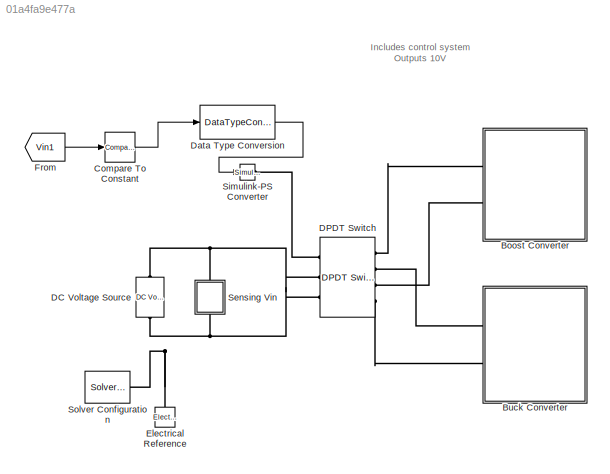
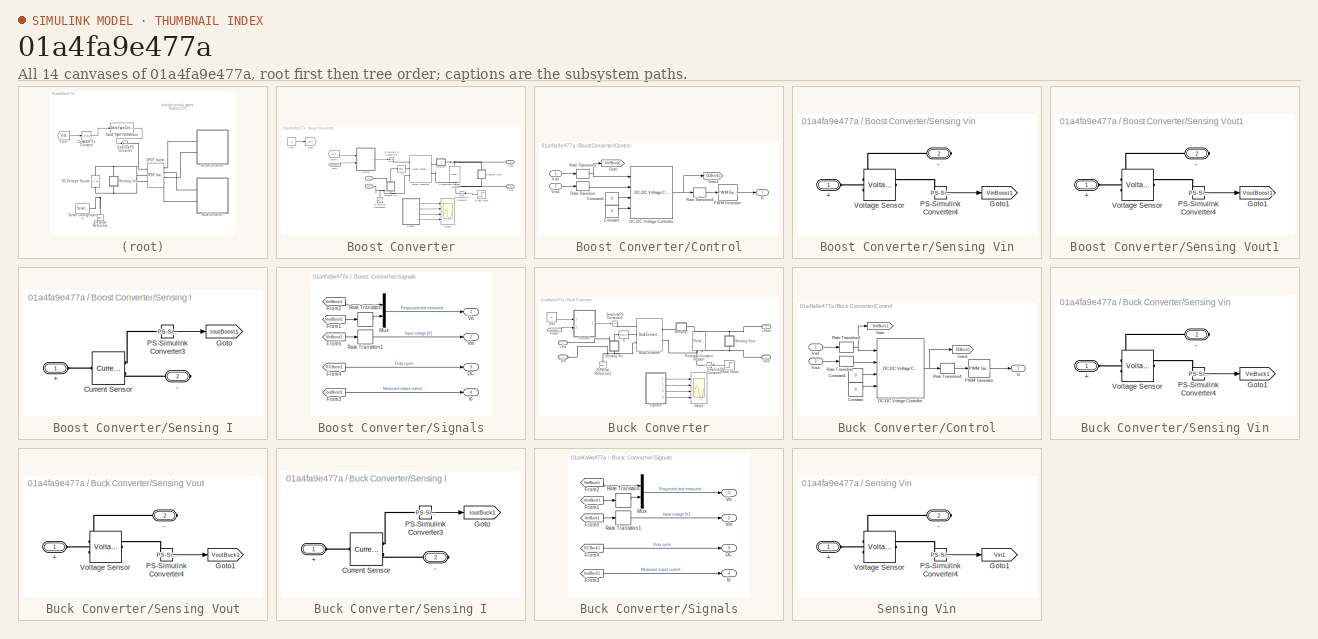
[diagram: thumbnail index - all 14 canvases of the model, root first then tree order]
MODEL slx_01a4fa9e477a
KIND model
CONFIG AbsTol = auto
CONFIG EnableMultiTasking = off
CONFIG FixedStep = auto
CONFIG MaxStep = auto
CONFIG MinStep = auto
CONFIG RelTol = 1e-3
CONFIG SampleTimeConstraint = Unconstrained
CONFIG SolverName = VariableStepAuto
CONFIG StartTime = 0.0
CONFIG StopTime = 0.04
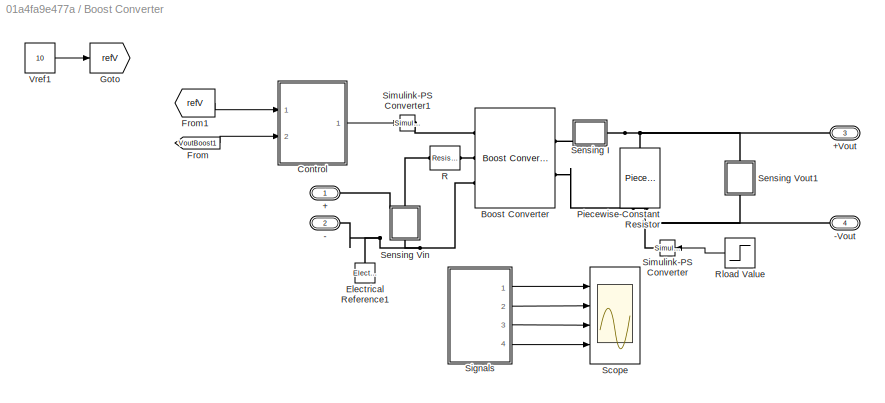
BLOCK [SubSystem] Boost Converter
  Ports = [0, 0, 0, 0, 0, 2, 2]
  RequestExecContextInheritance = off
BLOCK [PMIOPort] Boost Converter/+
  Side = Left
BLOCK [PMIOPort] Boost Converter/+Vout
  NameLocation = top
  Port = 3
  Side = Right
BLOCK [PMIOPort] Boost Converter/-
  Port = 2
  Side = Left
BLOCK [PMIOPort] Boost Converter/-Vout
  NameLocation = top
  Port = 4
  Side = Right
BLOCK [Reference] Boost Converter/Boost Converter  REF=ee_lib/Semiconductors &
Converters/Converters/Boost Converter
  Ports = [0, 0, 0, 0, 0, 3, 2]
  SourceBlock = ee_lib/Semiconductors &\nConverters/Converters/Boost Converter
  SourceProductBaseCode = PS
  SourceType = Boost Converter
BLOCK [SubSystem] Boost Converter/Control
  Ports = [2, 1]
  RequestExecContextInheritance = off
BLOCK [Constant] Boost Converter/Control/Constant
  Value = 0
BLOCK [Constant] Boost Converter/Control/Constant1
  Value = 0
BLOCK [Reference] Boost Converter/Control/DC-DC Voltage Controller  REF=eeDcDcVoltageController/DC-DC Voltage Controller
  Ports = [4, 1]
  SourceBlock = eeDcDcVoltageController/DC-DC Voltage Controller
  SourceProductBaseCode = PS
  SourceType = DC-DC Voltage Controller
BLOCK [Outport] Boost Converter/Control/G
  VectorParamsAs1DForOutWhenUnconnected = off
BLOCK [Goto] Boost Converter/Control/Goto
  GotoTag = VrefBoost1
  TagVisibility = global
BLOCK [Goto] Boost Converter/Control/Goto1
  GotoTag = DCBoost1
  TagVisibility = global
BLOCK [Reference] Boost Converter/Control/PWM Generator  REF=eePwmGenerator/PWM Generator
  Ports = [1, 1]
  SourceBlock = eePwmGenerator/PWM Generator
  SourceProductBaseCode = PS
  SourceType = PWM Generator
BLOCK [RateTransition] Boost Converter/Control/Rate Transition
  OutPortSampleTime = 1e-4
BLOCK [RateTransition] Boost Converter/Control/Rate Transition3
  OutPortSampleTime = 1e-4
BLOCK [RateTransition] Boost Converter/Control/Rate Transition4
  OutPortSampleTime = 5e-6
BLOCK [Inport] Boost Converter/Control/Vout
  Port = 2
BLOCK [Inport] Boost Converter/Control/Vref
BLOCK [Reference] Boost Converter/Electrical Reference1  REF=fl_lib/Electrical/Electrical Elements/Electrical Reference
  NameLocation = right
  Ports = [0, 0, 0, 0, 0, 1]
  SourceBlock = fl_lib/Electrical/Electrical Elements/Electrical Reference
  SourceProductBaseCode = PW,SS,VE
  SourceType = Electrical Reference
BLOCK [From] Boost Converter/From
  GotoTag = VoutBoost1
  TagVisibility = global
BLOCK [From] Boost Converter/From1
  GotoTag = refV
  TagVisibility = global
BLOCK [Goto] Boost Converter/Goto
  GotoTag = refV
  TagVisibility = global
BLOCK [Reference] Boost Converter/Piecewise-Constant Resistor  REF=ThreePhaseExamples_lib/Fundamental/Piecewise-Constant
Resistor
  NameLocation = right
  Ports = [0, 0, 0, 0, 0, 2, 1]
  SourceBlock = ThreePhaseExamples_lib/Fundamental/Piecewise-Constant\nResistor
  SourceProductBaseCode = PS
  SourceType = Piecewise-Constant\nResistor
BLOCK [Reference] Boost Converter/R  REF=fl_lib/Electrical/Electrical Elements/Resistor
  Ports = [0, 0, 0, 0, 0, 1, 1]
  SourceBlock = fl_lib/Electrical/Electrical Elements/Resistor
  SourceProductBaseCode = PW,SS,VE
  SourceType = Resistor
BLOCK [Step] Boost Converter/Rload Value
  After = 15
  Before = 10
  SampleTime = 0
  Time = 0.15
BLOCK [Scope] Boost Converter/Scope
  Floating = off
  NumInputPorts = 4
  Ports = [4]
  ScopeSpecificationString = Simulink.scopes.TimeScopeBlockCfg('CurrentConfiguration', extmgr.ConfigurationSet(extmgr.Configuration('Core','General UI',true),extmgr.Configuration('Core','Source UI',true),extmgr.Configuration('Sources','WiredSimulink',true),extmgr.Configuration('Visuals','Time Domain',true,'SerializedDisplays',{struct('MinYLimReal','-1.28158','MaxYLimReal','11.53424','YLabelReal','','MinYLimMag','0.00000','Max...<+3589ch>
BLOCK [SubSystem] Boost Converter/Sensing I
  Ports = [0, 0, 0, 0, 0, 1, 1]
  RequestExecContextInheritance = off
BLOCK [PMIOPort] Boost Converter/Sensing I/+
  Side = Left
BLOCK [PMIOPort] Boost Converter/Sensing I/-
  Port = 2
  Side = Right
BLOCK [Reference] Boost Converter/Sensing I/Current Sensor  REF=fl_lib/Electrical/Electrical Sensors/Current Sensor
  Ports = [0, 0, 0, 0, 0, 1, 2]
  SourceBlock = fl_lib/Electrical/Electrical Sensors/Current Sensor
  SourceProductBaseCode = PW,SS,VE
  SourceType = Current Sensor
BLOCK [Goto] Boost Converter/Sensing I/Goto
  GotoTag = IoutBoost1
  TagVisibility = global
BLOCK [Reference] Boost Converter/Sensing I/PS-Simulink Converter3  REF=nesl_utility/PS-Simulink
Converter
  Ports = [0, 1, 0, 0, 0, 1]
  SourceBlock = nesl_utility/PS-Simulink\nConverter
  SourceProductBaseCode = SS,PW,VE
  SourceType = PS-Simulink\nConverter
BLOCK [SubSystem] Boost Converter/Sensing Vin
  NameLocation = right
  Ports = [0, 0, 0, 0, 0, 1, 1]
  RequestExecContextInheritance = off
BLOCK [PMIOPort] Boost Converter/Sensing Vin/+
  Side = Left
BLOCK [PMIOPort] Boost Converter/Sensing Vin/-
  Port = 2
  Side = Right
BLOCK [Goto] Boost Converter/Sensing Vin/Goto1
  GotoTag = VinBoost1
  TagVisibility = global
BLOCK [Reference] Boost Converter/Sensing Vin/PS-Simulink Converter4  REF=nesl_utility/PS-Simulink
Converter
  Ports = [0, 1, 0, 0, 0, 1]
  SourceBlock = nesl_utility/PS-Simulink\nConverter
  SourceProductBaseCode = SS,PW,VE
  SourceType = PS-Simulink\nConverter
BLOCK [Reference] Boost Converter/Sensing Vin/Voltage Sensor  REF=fl_lib/Electrical/Electrical Sensors/Voltage Sensor
  Ports = [0, 0, 0, 0, 0, 1, 2]
  SourceBlock = fl_lib/Electrical/Electrical Sensors/Voltage Sensor
  SourceProductBaseCode = PW,SS,VE
  SourceType = Voltage Sensor
BLOCK [SubSystem] Boost Converter/Sensing Vout1
  NameLocation = right
  Ports = [0, 0, 0, 0, 0, 1, 1]
  RequestExecContextInheritance = off
BLOCK [PMIOPort] Boost Converter/Sensing Vout1/+
  Side = Left
BLOCK [PMIOPort] Boost Converter/Sensing Vout1/-
  Port = 2
  Side = Right
BLOCK [Goto] Boost Converter/Sensing Vout1/Goto1
  GotoTag = VoutBoost1
  TagVisibility = global
BLOCK [Reference] Boost Converter/Sensing Vout1/PS-Simulink Converter4  REF=nesl_utility/PS-Simulink
Converter
  Ports = [0, 1, 0, 0, 0, 1]
  SourceBlock = nesl_utility/PS-Simulink\nConverter
  SourceProductBaseCode = SS,PW,VE
  SourceType = PS-Simulink\nConverter
BLOCK [Reference] Boost Converter/Sensing Vout1/Voltage Sensor  REF=fl_lib/Electrical/Electrical Sensors/Voltage Sensor
  Ports = [0, 0, 0, 0, 0, 1, 2]
  SourceBlock = fl_lib/Electrical/Electrical Sensors/Voltage Sensor
  SourceProductBaseCode = PW,SS,VE
  SourceType = Voltage Sensor
BLOCK [SubSystem] Boost Converter/Signals
  Ports = [0, 4]
  RequestExecContextInheritance = off
BLOCK [Outport] Boost Converter/Signals/DC
  Port = 3
  VectorParamsAs1DForOutWhenUnconnected = off
BLOCK [From] Boost Converter/Signals/From1
  GotoTag = VoutBoost1
  TagVisibility = global
BLOCK [From] Boost Converter/Signals/From2
  GotoTag = VrefBoost1
  TagVisibility = global
BLOCK [From] Boost Converter/Signals/From3
  GotoTag = IoutBoost1
  TagVisibility = global
BLOCK [From] Boost Converter/Signals/From4
  GotoTag = DCBoost1
  TagVisibility = global
BLOCK [From] Boost Converter/Signals/From5
  GotoTag = VinBoost1
  TagVisibility = global
BLOCK [Outport] Boost Converter/Signals/Io
  Port = 4
  VectorParamsAs1DForOutWhenUnconnected = off
BLOCK [Mux] Boost Converter/Signals/Mux
  DisplayOption = bar
  Inputs = 2
  Ports = [2, 1]
BLOCK [RateTransition] Boost Converter/Signals/Rate Transition
  OutPortSampleTime = 1e-4
BLOCK [RateTransition] Boost Converter/Signals/Rate Transition1
  OutPortSampleTime = 1e-4
BLOCK [Outport] Boost Converter/Signals/Vin
  Port = 2
  VectorParamsAs1DForOutWhenUnconnected = off
BLOCK [Outport] Boost Converter/Signals/Vo
  VectorParamsAs1DForOutWhenUnconnected = off
BLOCK [Reference] Boost Converter/Simulink-PS Converter  REF=nesl_utility/Simulink-PS
Converter
  Ports = [1, 0, 0, 0, 0, 0, 1]
  SourceBlock = nesl_utility/Simulink-PS\nConverter
  SourceProductBaseCode = SS,PW,VE
  SourceType = Simulink-PS\nConverter
BLOCK [Reference] Boost Converter/Simulink-PS Converter1  REF=nesl_utility/Simulink-PS
Converter
  Ports = [1, 0, 0, 0, 0, 0, 1]
  SourceBlock = nesl_utility/Simulink-PS\nConverter
  SourceProductBaseCode = SS,PW,VE
  SourceType = Simulink-PS\nConverter
BLOCK [Constant] Boost Converter/Vref1
  SampleTime = 5e-6
  Value = 10
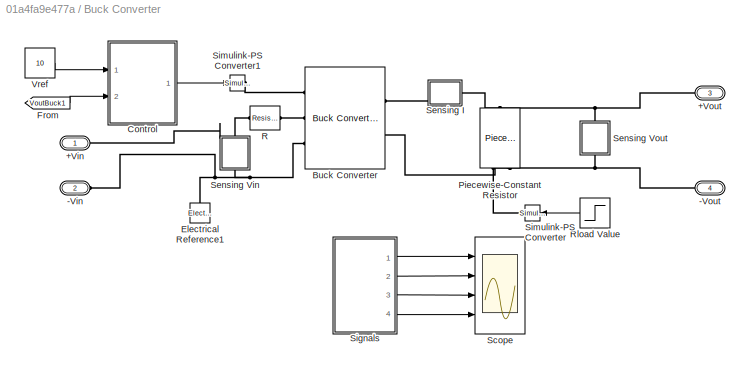
BLOCK [SubSystem] Buck Converter
  Ports = [0, 0, 0, 0, 0, 2, 2]
  RequestExecContextInheritance = off
BLOCK [PMIOPort] Buck Converter/+Vin
  Side = Left
BLOCK [PMIOPort] Buck Converter/+Vout
  NameLocation = top
  Port = 3
  Side = Right
BLOCK [PMIOPort] Buck Converter/-Vin
  Port = 2
  Side = Left
BLOCK [PMIOPort] Buck Converter/-Vout
  NameLocation = top
  Port = 4
  Side = Right
BLOCK [Reference] Buck Converter/Buck Converter  REF=ee_lib/Semiconductors &
Converters/Converters/Buck Converter
  Ports = [0, 0, 0, 0, 0, 3, 2]
  SourceBlock = ee_lib/Semiconductors &\nConverters/Converters/Buck Converter
  SourceProductBaseCode = PS
  SourceType = Buck Converter
BLOCK [SubSystem] Buck Converter/Control
  Ports = [2, 1]
  RequestExecContextInheritance = off
BLOCK [Constant] Buck Converter/Control/Constant
  Value = 0
BLOCK [Constant] Buck Converter/Control/Constant1
  Value = 0
BLOCK [Reference] Buck Converter/Control/DC-DC Voltage Controller  REF=eeDcDcVoltageController/DC-DC Voltage Controller
  Ports = [4, 1]
  SourceBlock = eeDcDcVoltageController/DC-DC Voltage Controller
  SourceProductBaseCode = PS
  SourceType = DC-DC Voltage Controller
BLOCK [Outport] Buck Converter/Control/G
  VectorParamsAs1DForOutWhenUnconnected = off
BLOCK [Goto] Buck Converter/Control/Goto
  GotoTag = VrefBuck1
  TagVisibility = global
BLOCK [Goto] Buck Converter/Control/Goto1
  GotoTag = DCBuck1
  TagVisibility = global
BLOCK [Reference] Buck Converter/Control/PWM Generator  REF=eePwmGenerator/PWM Generator
  Ports = [1, 1]
  SourceBlock = eePwmGenerator/PWM Generator
  SourceProductBaseCode = PS
  SourceType = PWM Generator
BLOCK [RateTransition] Buck Converter/Control/Rate Transition
  OutPortSampleTime = 1e-4
BLOCK [RateTransition] Buck Converter/Control/Rate Transition3
  OutPortSampleTime = 1e-4
BLOCK [RateTransition] Buck Converter/Control/Rate Transition4
  OutPortSampleTime = 5e-6
BLOCK [Inport] Buck Converter/Control/Vout
  Port = 2
BLOCK [Inport] Buck Converter/Control/Vref
BLOCK [Reference] Buck Converter/Electrical Reference1  REF=fl_lib/Electrical/Electrical Elements/Electrical Reference
  NameLocation = right
  Ports = [0, 0, 0, 0, 0, 1]
  SourceBlock = fl_lib/Electrical/Electrical Elements/Electrical Reference
  SourceProductBaseCode = PW,SS,VE
  SourceType = Electrical Reference
BLOCK [From] Buck Converter/From
  GotoTag = VoutBuck1
  TagVisibility = global
BLOCK [Reference] Buck Converter/Piecewise-Constant Resistor  REF=ThreePhaseExamples_lib/Fundamental/Piecewise-Constant
Resistor
  NameLocation = right
  Ports = [0, 0, 0, 0, 0, 2, 1]
  SourceBlock = ThreePhaseExamples_lib/Fundamental/Piecewise-Constant\nResistor
  SourceProductBaseCode = PS
  SourceType = Piecewise-Constant\nResistor
BLOCK [Reference] Buck Converter/R  REF=fl_lib/Electrical/Electrical Elements/Resistor
  Ports = [0, 0, 0, 0, 0, 1, 1]
  SourceBlock = fl_lib/Electrical/Electrical Elements/Resistor
  SourceProductBaseCode = PW,SS,VE
  SourceType = Resistor
BLOCK [Step] Buck Converter/Rload Value
  After = 3
  Before = 2
  SampleTime = 0
  Time = 0.15
BLOCK [Scope] Buck Converter/Scope
  Floating = off
  NumInputPorts = 4
  Ports = [4]
  ScopeSpecificationString = Simulink.scopes.TimeScopeBlockCfg('CurrentConfiguration', extmgr.ConfigurationSet(extmgr.Configuration('Core','General UI',true),extmgr.Configuration('Core','Source UI',true),extmgr.Configuration('Sources','WiredSimulink',true,'DataLoggingVariableName','ScopeData1'),extmgr.Configuration('Visuals','Time Domain',true,'SerializedDisplays',{struct('MinYLimReal','-1.25','MaxYLimReal','11.25','YLabelRea...<+3641ch>
BLOCK [SubSystem] Buck Converter/Sensing I
  Ports = [0, 0, 0, 0, 0, 1, 1]
  RequestExecContextInheritance = off
BLOCK [PMIOPort] Buck Converter/Sensing I/+
  Side = Left
BLOCK [PMIOPort] Buck Converter/Sensing I/-
  Port = 2
  Side = Right
BLOCK [Reference] Buck Converter/Sensing I/Current Sensor  REF=fl_lib/Electrical/Electrical Sensors/Current Sensor
  Ports = [0, 0, 0, 0, 0, 1, 2]
  SourceBlock = fl_lib/Electrical/Electrical Sensors/Current Sensor
  SourceProductBaseCode = PW,SS,VE
  SourceType = Current Sensor
BLOCK [Goto] Buck Converter/Sensing I/Goto
  GotoTag = IoutBuck1
  TagVisibility = global
BLOCK [Reference] Buck Converter/Sensing I/PS-Simulink Converter3  REF=nesl_utility/PS-Simulink
Converter
  Ports = [0, 1, 0, 0, 0, 1]
  SourceBlock = nesl_utility/PS-Simulink\nConverter
  SourceProductBaseCode = SS,PW,VE
  SourceType = PS-Simulink\nConverter
BLOCK [SubSystem] Buck Converter/Sensing Vin
  NameLocation = right
  Ports = [0, 0, 0, 0, 0, 1, 1]
  RequestExecContextInheritance = off
BLOCK [PMIOPort] Buck Converter/Sensing Vin/+
  Side = Left
BLOCK [PMIOPort] Buck Converter/Sensing Vin/-
  Port = 2
  Side = Right
BLOCK [Goto] Buck Converter/Sensing Vin/Goto1
  GotoTag = VinBuck1
  TagVisibility = global
BLOCK [Reference] Buck Converter/Sensing Vin/PS-Simulink Converter4  REF=nesl_utility/PS-Simulink
Converter
  Ports = [0, 1, 0, 0, 0, 1]
  SourceBlock = nesl_utility/PS-Simulink\nConverter
  SourceProductBaseCode = SS,PW,VE
  SourceType = PS-Simulink\nConverter
BLOCK [Reference] Buck Converter/Sensing Vin/Voltage Sensor  REF=fl_lib/Electrical/Electrical Sensors/Voltage Sensor
  Ports = [0, 0, 0, 0, 0, 1, 2]
  SourceBlock = fl_lib/Electrical/Electrical Sensors/Voltage Sensor
  SourceProductBaseCode = PW,SS,VE
  SourceType = Voltage Sensor
BLOCK [SubSystem] Buck Converter/Sensing Vout
  NameLocation = right
  Ports = [0, 0, 0, 0, 0, 1, 1]
  RequestExecContextInheritance = off
BLOCK [PMIOPort] Buck Converter/Sensing Vout/+
  Side = Left
BLOCK [PMIOPort] Buck Converter/Sensing Vout/-
  Port = 2
  Side = Right
BLOCK [Goto] Buck Converter/Sensing Vout/Goto1
  GotoTag = VoutBuck1
  TagVisibility = global
BLOCK [Reference] Buck Converter/Sensing Vout/PS-Simulink Converter4  REF=nesl_utility/PS-Simulink
Converter
  Ports = [0, 1, 0, 0, 0, 1]
  SourceBlock = nesl_utility/PS-Simulink\nConverter
  SourceProductBaseCode = SS,PW,VE
  SourceType = PS-Simulink\nConverter
BLOCK [Reference] Buck Converter/Sensing Vout/Voltage Sensor  REF=fl_lib/Electrical/Electrical Sensors/Voltage Sensor
  Ports = [0, 0, 0, 0, 0, 1, 2]
  SourceBlock = fl_lib/Electrical/Electrical Sensors/Voltage Sensor
  SourceProductBaseCode = PW,SS,VE
  SourceType = Voltage Sensor
BLOCK [SubSystem] Buck Converter/Signals
  Ports = [0, 4]
  RequestExecContextInheritance = off
BLOCK [Outport] Buck Converter/Signals/DC
  Port = 3
  VectorParamsAs1DForOutWhenUnconnected = off
BLOCK [From] Buck Converter/Signals/From1
  GotoTag = VoutBuck1
  TagVisibility = global
BLOCK [From] Buck Converter/Signals/From2
  GotoTag = VrefBuck1
  TagVisibility = global
BLOCK [From] Buck Converter/Signals/From3
  GotoTag = IoutBuck1
  TagVisibility = global
BLOCK [From] Buck Converter/Signals/From4
  GotoTag = DCBuck1
  TagVisibility = global
BLOCK [From] Buck Converter/Signals/From5
  GotoTag = VinBuck1
  TagVisibility = global
BLOCK [Outport] Buck Converter/Signals/Io
  Port = 4
  VectorParamsAs1DForOutWhenUnconnected = off
BLOCK [Mux] Buck Converter/Signals/Mux
  DisplayOption = bar
  Inputs = 2
  Ports = [2, 1]
BLOCK [RateTransition] Buck Converter/Signals/Rate Transition
  OutPortSampleTime = 1e-4
BLOCK [RateTransition] Buck Converter/Signals/Rate Transition1
  OutPortSampleTime = 1e-4
BLOCK [Outport] Buck Converter/Signals/Vin
  Port = 2
  VectorParamsAs1DForOutWhenUnconnected = off
BLOCK [Outport] Buck Converter/Signals/Vo
  VectorParamsAs1DForOutWhenUnconnected = off
BLOCK [Reference] Buck Converter/Simulink-PS Converter  REF=nesl_utility/Simulink-PS
Converter
  Ports = [1, 0, 0, 0, 0, 0, 1]
  SourceBlock = nesl_utility/Simulink-PS\nConverter
  SourceProductBaseCode = SS,PW,VE
  SourceType = Simulink-PS\nConverter
BLOCK [Reference] Buck Converter/Simulink-PS Converter1  REF=nesl_utility/Simulink-PS
Converter
  Ports = [1, 0, 0, 0, 0, 0, 1]
  SourceBlock = nesl_utility/Simulink-PS\nConverter
  SourceProductBaseCode = SS,PW,VE
  SourceType = Simulink-PS\nConverter
BLOCK [Constant] Buck Converter/Vref
  SampleTime = 5e-6
  Value = 10
BLOCK [Reference] Compare To Constant  REF=simulink/Logic and Bit
Operations/Compare
To Constant
  Ports = [1, 1]
  SourceBlock = simulink/Logic and Bit\nOperations/Compare\nTo Constant
  SourceProductBaseCode = SL
  SourceType = Compare To Constant
BLOCK [Reference] DC Voltage Source  REF=ee_lib/Additional
Components/SPICE Sources/DC Voltage Source
  NameLocation = right
  Ports = [0, 0, 0, 0, 0, 1, 1]
  SourceBlock = ee_lib/Additional\nComponents/SPICE Sources/DC Voltage Source
  SourceProductBaseCode = PS
  SourceType = DC Voltage Source
BLOCK [Reference] DPDT Switch  REF=ee_lib/Switches & Breakers/DPDT Switch
  Ports = [0, 0, 0, 0, 0, 3, 4]
  SourceBlock = ee_lib/Switches & Breakers/DPDT Switch
  SourceProductBaseCode = PS
  SourceType = DPDT Switch
BLOCK [DataTypeConversion] Data Type Conversion
  RndMeth = Floor
  SaturateOnIntegerOverflow = off
BLOCK [Reference] Electrical Reference  REF=fl_lib/Electrical/Electrical Elements/Electrical Reference
  NameLocation = right
  Ports = [0, 0, 0, 0, 0, 1]
  SourceBlock = fl_lib/Electrical/Electrical Elements/Electrical Reference
  SourceProductBaseCode = PW,SS,VE
  SourceType = Electrical Reference
BLOCK [From] From
  GotoTag = Vin1
  TagVisibility = global
BLOCK [SubSystem] Sensing Vin
  NameLocation = right
  Ports = [0, 0, 0, 0, 0, 1, 1]
  RequestExecContextInheritance = off
BLOCK [PMIOPort] Sensing Vin/+
  Side = Left
BLOCK [PMIOPort] Sensing Vin/-
  Port = 2
  Side = Right
BLOCK [Goto] Sensing Vin/Goto1
  GotoTag = Vin1
  TagVisibility = global
BLOCK [Reference] Sensing Vin/PS-Simulink Converter4  REF=nesl_utility/PS-Simulink
Converter
  Ports = [0, 1, 0, 0, 0, 1]
  SourceBlock = nesl_utility/PS-Simulink\nConverter
  SourceProductBaseCode = SS,PW,VE
  SourceType = PS-Simulink\nConverter
BLOCK [Reference] Sensing Vin/Voltage Sensor  REF=fl_lib/Electrical/Electrical Sensors/Voltage Sensor
  Ports = [0, 0, 0, 0, 0, 1, 2]
  SourceBlock = fl_lib/Electrical/Electrical Sensors/Voltage Sensor
  SourceProductBaseCode = PW,SS,VE
  SourceType = Voltage Sensor
BLOCK [Reference] Simulink-PS Converter  REF=nesl_utility/Simulink-PS
Converter
  Ports = [1, 0, 0, 0, 0, 0, 1]
  SourceBlock = nesl_utility/Simulink-PS\nConverter
  SourceProductBaseCode = SS,PW,VE
  SourceType = Simulink-PS\nConverter
BLOCK [Reference] Solver Configuration  REF=nesl_utility/Solver
Configuration
  Ports = [0, 0, 0, 0, 0, 0, 1]
  SourceBlock = nesl_utility/Solver\nConfiguration
  SourceProductBaseCode = SS,PW,VE
  SourceType = Solver\nConfiguration
ANNOTATION (root): Includes control system Outputs 10V
LINE Boost Converter/Control/Constant1:1 -> Boost Converter/Control/DC-DC Voltage Controller:3
LINE Boost Converter/Control/Constant:1 -> Boost Converter/Control/DC-DC Voltage Controller:4
NET Boost Converter/Control/DC-DC Voltage Controller:1 -> Boost Converter/Control/Goto1:1, Boost Converter/Control/Rate Transition4:1
LINE Boost Converter/Control/PWM Generator:1 -> Boost Converter/Control/G:1
NET Boost Converter/Control/Rate Transition3:1 -> Boost Converter/Control/DC-DC Voltage Controller:1, Boost Converter/Control/Goto:1
LINE Boost Converter/Control/Rate Transition4:1 -> Boost Converter/Control/PWM Generator:1
LINE Boost Converter/Control/Rate Transition:1 -> Boost Converter/Control/DC-DC Voltage Controller:2
LINE Boost Converter/Control/Vout:1 -> Boost Converter/Control/Rate Transition:1
LINE Boost Converter/Control/Vref:1 -> Boost Converter/Control/Rate Transition3:1
LINE Boost Converter/Control:1 -> Boost Converter/Simulink-PS Converter1:1
LINE Boost Converter/From1:1 -> Boost Converter/Control:1
LINE Boost Converter/From:1 -> Boost Converter/Control:2
LINE Boost Converter/Rload Value:1 -> Boost Converter/Simulink-PS Converter:1
LINE Boost Converter/Sensing I/PS-Simulink Converter3:1 -> Boost Converter/Sensing I/Goto:1
LINE Boost Converter/Sensing Vin/PS-Simulink Converter4:1 -> Boost Converter/Sensing Vin/Goto1:1
LINE Boost Converter/Sensing Vout1/PS-Simulink Converter4:1 -> Boost Converter/Sensing Vout1/Goto1:1
LINE Boost Converter/Signals/From1:1 -> Boost Converter/Signals/Rate Transition:1
LINE Boost Converter/Signals/From2:1 -> Boost Converter/Signals/Mux:1
LINE Boost Converter/Signals/From3:1 -> Boost Converter/Signals/Io:1
LINE Boost Converter/Signals/From4:1 -> Boost Converter/Signals/DC:1
LINE Boost Converter/Signals/From5:1 -> Boost Converter/Signals/Rate Transition1:1
LINE Boost Converter/Signals/Mux:1 -> Boost Converter/Signals/Vo:1
LINE Boost Converter/Signals/Rate Transition1:1 -> Boost Converter/Signals/Vin:1
LINE Boost Converter/Signals/Rate Transition:1 -> Boost Converter/Signals/Mux:2
LINE Boost Converter/Signals:1 -> Boost Converter/Scope:1
LINE Boost Converter/Signals:2 -> Boost Converter/Scope:2
LINE Boost Converter/Signals:3 -> Boost Converter/Scope:3
LINE Boost Converter/Signals:4 -> Boost Converter/Scope:4
LINE Boost Converter/Vref1:1 -> Boost Converter/Goto:1
LINE Buck Converter/Control/Constant1:1 -> Buck Converter/Control/DC-DC Voltage Controller:3
LINE Buck Converter/Control/Constant:1 -> Buck Converter/Control/DC-DC Voltage Controller:4
NET Buck Converter/Control/DC-DC Voltage Controller:1 -> Buck Converter/Control/Goto1:1, Buck Converter/Control/Rate Transition4:1
LINE Buck Converter/Control/PWM Generator:1 -> Buck Converter/Control/G:1
NET Buck Converter/Control/Rate Transition3:1 -> Buck Converter/Control/DC-DC Voltage Controller:1, Buck Converter/Control/Goto:1
LINE Buck Converter/Control/Rate Transition4:1 -> Buck Converter/Control/PWM Generator:1
LINE Buck Converter/Control/Rate Transition:1 -> Buck Converter/Control/DC-DC Voltage Controller:2
LINE Buck Converter/Control/Vout:1 -> Buck Converter/Control/Rate Transition:1
LINE Buck Converter/Control/Vref:1 -> Buck Converter/Control/Rate Transition3:1
LINE Buck Converter/Control:1 -> Buck Converter/Simulink-PS Converter1:1
LINE Buck Converter/From:1 -> Buck Converter/Control:2
LINE Buck Converter/Rload Value:1 -> Buck Converter/Simulink-PS Converter:1
LINE Buck Converter/Sensing I/PS-Simulink Converter3:1 -> Buck Converter/Sensing I/Goto:1
LINE Buck Converter/Sensing Vin/PS-Simulink Converter4:1 -> Buck Converter/Sensing Vin/Goto1:1
LINE Buck Converter/Sensing Vout/PS-Simulink Converter4:1 -> Buck Converter/Sensing Vout/Goto1:1
LINE Buck Converter/Signals/From1:1 -> Buck Converter/Signals/Rate Transition:1
LINE Buck Converter/Signals/From2:1 -> Buck Converter/Signals/Mux:1
LINE Buck Converter/Signals/From3:1 -> Buck Converter/Signals/Io:1
LINE Buck Converter/Signals/From4:1 -> Buck Converter/Signals/DC:1
LINE Buck Converter/Signals/From5:1 -> Buck Converter/Signals/Rate Transition1:1
LINE Buck Converter/Signals/Mux:1 -> Buck Converter/Signals/Vo:1
LINE Buck Converter/Signals/Rate Transition1:1 -> Buck Converter/Signals/Vin:1
LINE Buck Converter/Signals/Rate Transition:1 -> Buck Converter/Signals/Mux:2
LINE Buck Converter/Signals:1 -> Buck Converter/Scope:1
LINE Buck Converter/Signals:2 -> Buck Converter/Scope:2
LINE Buck Converter/Signals:3 -> Buck Converter/Scope:3
LINE Buck Converter/Signals:4 -> Buck Converter/Scope:4
LINE Buck Converter/Vref:1 -> Buck Converter/Control:1
LINE Compare To Constant:1 -> Data Type Conversion:1
LINE Data Type Conversion:1 -> Simulink-PS Converter:1
LINE From:1 -> Compare To Constant:1
LINE Sensing Vin/PS-Simulink Converter4:1 -> Sensing Vin/Goto1:1
PNET net1: Boost Converter/+:RConn1 -- Boost Converter/R:LConn1 -- Boost Converter/Sensing Vin:LConn1
PNET net2: Boost Converter/+Vout:RConn1 -- Boost Converter/Piecewise-Constant Resistor:RConn1 -- Boost Converter/Sensing I:RConn1 -- Boost Converter/Sensing Vout1:LConn1
PNET net3: Boost Converter/-:RConn1 -- Boost Converter/Boost Converter:LConn3 -- Boost Converter/Electrical Reference1:LConn1 -- Boost Converter/Sensing Vin:RConn1
PNET net4: Boost Converter/-Vout:RConn1 -- Boost Converter/Boost Converter:RConn2 -- Boost Converter/Piecewise-Constant Resistor:LConn2 -- Boost Converter/Sensing Vout1:RConn1
PLINE Boost Converter/Boost Converter:LConn1 -- Boost Converter/Simulink-PS Converter1:RConn1
PLINE Boost Converter/Boost Converter:LConn2 -- Boost Converter/R:RConn1
PLINE Boost Converter/Boost Converter:RConn1 -- Boost Converter/Sensing I:LConn1
PLINE Boost Converter/Piecewise-Constant Resistor:LConn1 -- Boost Converter/Simulink-PS Converter:RConn1
PLINE Boost Converter/Sensing I/+:RConn1 -- Boost Converter/Sensing I/Current Sensor:LConn1
PLINE Boost Converter/Sensing I/-:RConn1 -- Boost Converter/Sensing I/Current Sensor:RConn2
PLINE Boost Converter/Sensing I/Current Sensor:RConn1 -- Boost Converter/Sensing I/PS-Simulink Converter3:LConn1
PLINE Boost Converter/Sensing Vin/+:RConn1 -- Boost Converter/Sensing Vin/Voltage Sensor:LConn1
PLINE Boost Converter/Sensing Vin/-:RConn1 -- Boost Converter/Sensing Vin/Voltage Sensor:RConn2
PLINE Boost Converter/Sensing Vin/PS-Simulink Converter4:LConn1 -- Boost Converter/Sensing Vin/Voltage Sensor:RConn1
PLINE Boost Converter/Sensing Vout1/+:RConn1 -- Boost Converter/Sensing Vout1/Voltage Sensor:LConn1
PLINE Boost Converter/Sensing Vout1/-:RConn1 -- Boost Converter/Sensing Vout1/Voltage Sensor:RConn2
PLINE Boost Converter/Sensing Vout1/PS-Simulink Converter4:LConn1 -- Boost Converter/Sensing Vout1/Voltage Sensor:RConn1
PLINE Boost Converter:LConn1 -- DPDT Switch:RConn1
PLINE Boost Converter:LConn2 -- DPDT Switch:RConn3
PNET net5: Buck Converter/+Vin:RConn1 -- Buck Converter/R:LConn1 -- Buck Converter/Sensing Vin:LConn1
PNET net6: Buck Converter/+Vout:RConn1 -- Buck Converter/Piecewise-Constant Resistor:RConn1 -- Buck Converter/Sensing I:RConn1 -- Buck Converter/Sensing Vout:LConn1
PNET net7: Buck Converter/-Vin:RConn1 -- Buck Converter/Buck Converter:LConn3 -- Buck Converter/Electrical Reference1:LConn1 -- Buck Converter/Sensing Vin:RConn1
PNET net8: Buck Converter/-Vout:RConn1 -- Buck Converter/Buck Converter:RConn2 -- Buck Converter/Piecewise-Constant Resistor:LConn2 -- Buck Converter/Sensing Vout:RConn1
PLINE Buck Converter/Buck Converter:LConn1 -- Buck Converter/Simulink-PS Converter1:RConn1
PLINE Buck Converter/Buck Converter:LConn2 -- Buck Converter/R:RConn1
PLINE Buck Converter/Buck Converter:RConn1 -- Buck Converter/Sensing I:LConn1
PLINE Buck Converter/Piecewise-Constant Resistor:LConn1 -- Buck Converter/Simulink-PS Converter:RConn1
PLINE Buck Converter/Sensing I/+:RConn1 -- Buck Converter/Sensing I/Current Sensor:LConn1
PLINE Buck Converter/Sensing I/-:RConn1 -- Buck Converter/Sensing I/Current Sensor:RConn2
PLINE Buck Converter/Sensing I/Current Sensor:RConn1 -- Buck Converter/Sensing I/PS-Simulink Converter3:LConn1
PLINE Buck Converter/Sensing Vin/+:RConn1 -- Buck Converter/Sensing Vin/Voltage Sensor:LConn1
PLINE Buck Converter/Sensing Vin/-:RConn1 -- Buck Converter/Sensing Vin/Voltage Sensor:RConn2
PLINE Buck Converter/Sensing Vin/PS-Simulink Converter4:LConn1 -- Buck Converter/Sensing Vin/Voltage Sensor:RConn1
PLINE Buck Converter/Sensing Vout/+:RConn1 -- Buck Converter/Sensing Vout/Voltage Sensor:LConn1
PLINE Buck Converter/Sensing Vout/-:RConn1 -- Buck Converter/Sensing Vout/Voltage Sensor:RConn2
PLINE Buck Converter/Sensing Vout/PS-Simulink Converter4:LConn1 -- Buck Converter/Sensing Vout/Voltage Sensor:RConn1
PLINE Buck Converter:LConn1 -- DPDT Switch:RConn2
PLINE Buck Converter:LConn2 -- DPDT Switch:RConn4
PNET net9: DC Voltage Source:LConn1 -- DPDT Switch:LConn2 -- Sensing Vin:LConn1
PNET net10: DC Voltage Source:RConn1 -- DPDT Switch:LConn3 -- Electrical Reference:LConn1 -- Sensing Vin:RConn1 -- Solver Configuration:RConn1
PLINE DPDT Switch:LConn1 -- Simulink-PS Converter:RConn1
PLINE Sensing Vin/+:RConn1 -- Sensing Vin/Voltage Sensor:LConn1
PLINE Sensing Vin/-:RConn1 -- Sensing Vin/Voltage Sensor:RConn2
PLINE Sensing Vin/PS-Simulink Converter4:LConn1 -- Sensing Vin/Voltage Sensor:RConn1
note: NET lines group one-source signal fan-out (src -> all destinations, sorted); 1:1 wires keep LINE; PNET lines group multi-terminal physical nets as a canonical sorted terminal list (undirected conserving connections); 2-terminal nets keep the pairwise PLINE form
